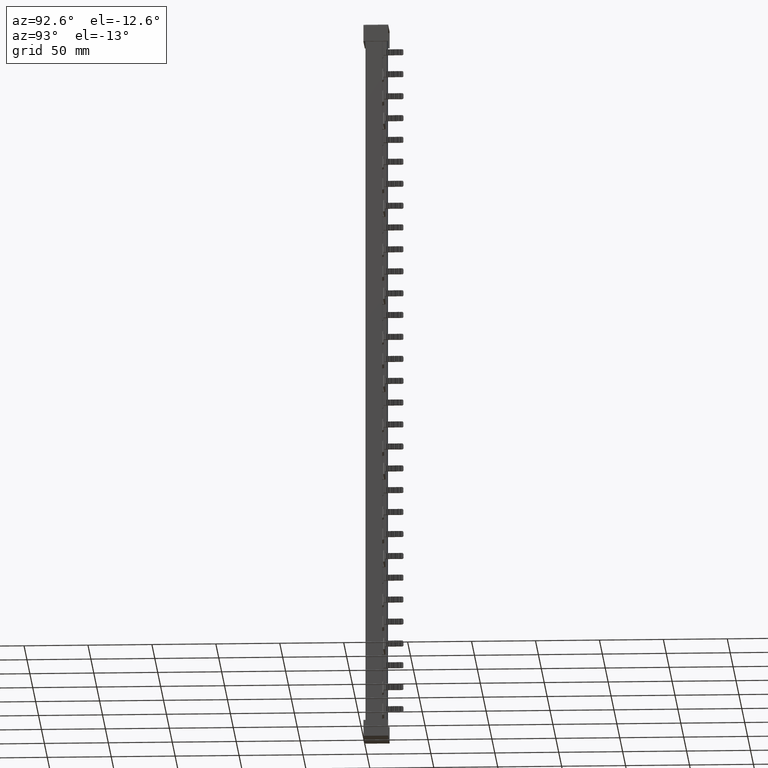
[diagram: clean part render]
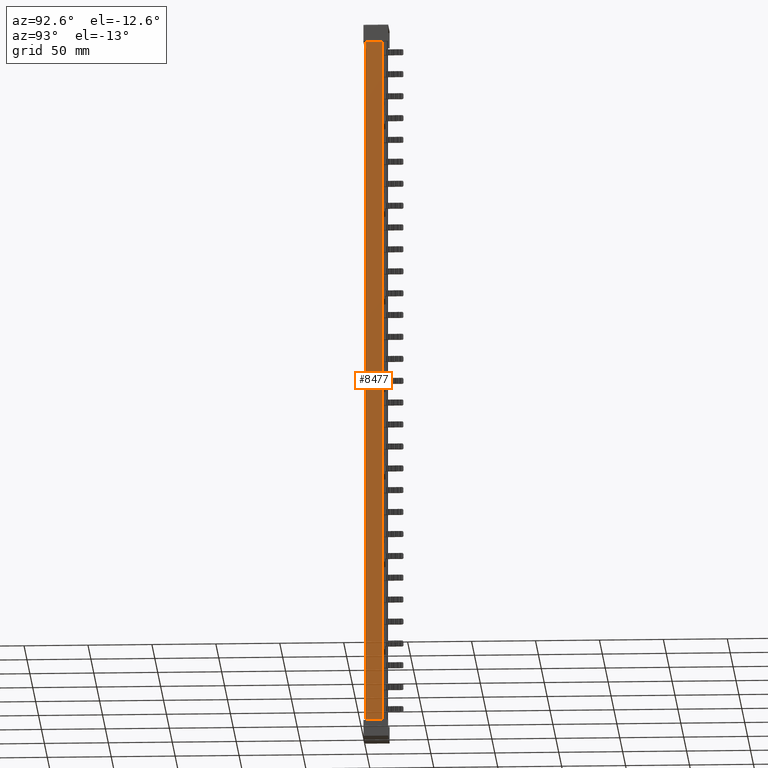
[diagram: same view with one face highlighted and labeled with its STEP entity id]
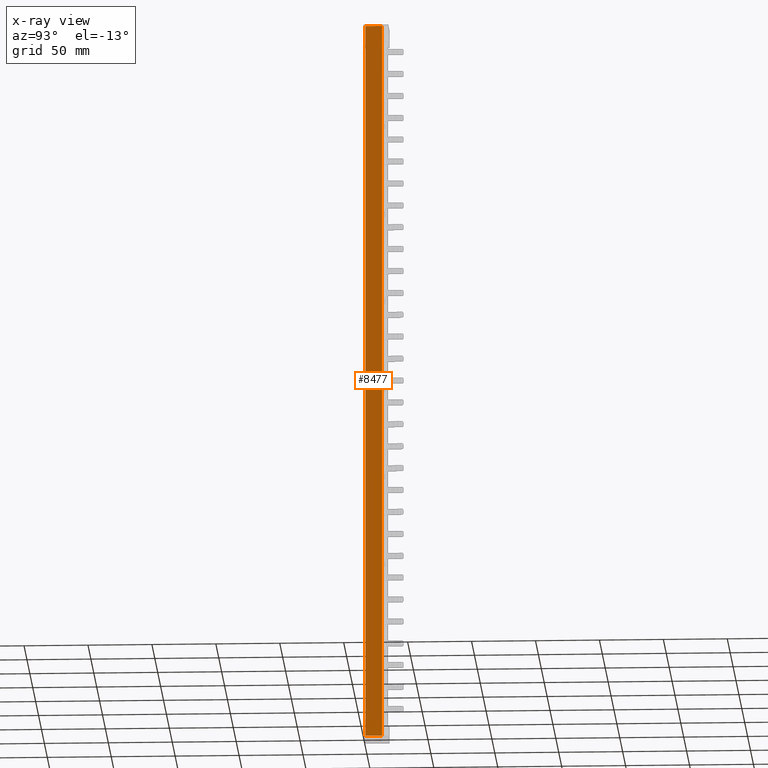
[diagram: x-ray of the same camera — body ghosted, the highlighted face saturated]
A machine part, auxiliary view. The second image highlights one B-rep face of the part: STEP entity #8477.
The next image is the same camera in x-ray: the body ghosted, the highlighted face saturated — about 0% of this face is hidden behind the body in this view.
In plain terms, the highlighted planar face has unit normal (-1, 0, 0).
Its self-contained STEP definition (entity closure, byte-faithful):
#631 = CARTESIAN_POINT ( 'NONE',  ( 23.49999999999996400, -14.22575591090892800, 304.0000000000000000 ) ) ;
#659 = DIRECTION ( 'NONE',  ( 0.0000000000000000000, 0.0000000000000000000, 1.000000000000000000 ) ) ;
#667 = DIRECTION ( 'NONE',  ( -1.000000000000000000, 0.0000000000000000000, 0.0000000000000000000 ) ) ;
#670 = PLANE ( 'NONE',  #59869 ) ;
#671 = FACE_OUTER_BOUND ( 'NONE', #6058, .T. ) ;
#3901 = VECTOR ( 'NONE', #51378, 1000.000000000000000 ) ;
#4124 = VECTOR ( 'NONE', #51178, 1000.000000000000000 ) ;
#4614 = VECTOR ( 'NONE', #50500, 1000.000000000000000 ) ;
#4838 = VECTOR ( 'NONE', #51082, 1000.000000000000000 ) ;
#6058 = EDGE_LOOP ( 'NONE', ( #36864, #36844, #36883, #36845 ) ) ;
#8477 = ADVANCED_FACE ( 'NONE', ( #671 ), #670, .F. ) ;
#9582 = EDGE_CURVE ( 'NONE', #12440, #12534, #50528, .T. ) ;
#9634 = EDGE_CURVE ( 'NONE', #12440, #12621, #51110, .T. ) ;
#9647 = EDGE_CURVE ( 'NONE', #12680, #12534, #51140, .T. ) ;
#9668 = EDGE_CURVE ( 'NONE', #12621, #12680, #51315, .T. ) ;
#12440 = VERTEX_POINT ( 'NONE', #41830 ) ;
#12534 = VERTEX_POINT ( 'NONE', #38815 ) ;
#12621 = VERTEX_POINT ( 'NONE', #38848 ) ;
#12680 = VERTEX_POINT ( 'NONE', #38928 ) ;
#36844 = ORIENTED_EDGE ( 'NONE', *, *, #9582, .F. ) ;
#36845 = ORIENTED_EDGE ( 'NONE', *, *, #9668, .T. ) ;
#36864 = ORIENTED_EDGE ( 'NONE', *, *, #9647, .T. ) ;
#36883 = ORIENTED_EDGE ( 'NONE', *, *, #9634, .T. ) ;
#38815 = CARTESIAN_POINT ( 'NONE',  ( 23.49999999999996400, 0.0000000000000000000, 303.9974937185664300 ) ) ;
#38848 = CARTESIAN_POINT ( 'NONE',  ( 23.49999999999996400, 13.00000000000001100, -263.9974937185663700 ) ) ;
#38928 = CARTESIAN_POINT ( 'NONE',  ( 23.49999999999996400, 13.00000000000001100, 303.9974937185664300 ) ) ;
#41830 = CARTESIAN_POINT ( 'NONE',  ( 23.49999999999996400, 0.0000000000000000000, -263.9974937185663700 ) ) ;
#50500 = DIRECTION ( 'NONE',  ( 0.0000000000000000000, 0.0000000000000000000, 1.000000000000000000 ) ) ;
#50528 = LINE ( 'NONE', #50556, #4614 ) ;
#50556 = CARTESIAN_POINT ( 'NONE',  ( 23.49999999999996400, 0.0000000000000000000, 304.0000000000000000 ) ) ;
#51082 = DIRECTION ( 'NONE',  ( 0.0000000000000000000, 1.000000000000000000, 0.0000000000000000000 ) ) ;
#51110 = LINE ( 'NONE', #51142, #4838 ) ;
#51140 = LINE ( 'NONE', #51177, #4124 ) ;
#51142 = CARTESIAN_POINT ( 'NONE',  ( 23.49999999999996800, -17.62393693064634100, -263.9974937185663700 ) ) ;
#51177 = CARTESIAN_POINT ( 'NONE',  ( 23.49999999999996400, -17.62393693064634100, 303.9974937185664300 ) ) ;
#51178 = DIRECTION ( 'NONE',  ( -0.0000000000000000000, -1.000000000000000000, -0.0000000000000000000 ) ) ;
#51315 = LINE ( 'NONE', #51332, #3901 ) ;
#51332 = CARTESIAN_POINT ( 'NONE',  ( 23.49999999999996400, 13.00000000000001100, 304.0000000000000000 ) ) ;
#51378 = DIRECTION ( 'NONE',  ( -0.0000000000000000000, 0.0000000000000000000, 1.000000000000000000 ) ) ;
#59869 = AXIS2_PLACEMENT_3D ( 'NONE', #631, #667, #659 ) ;